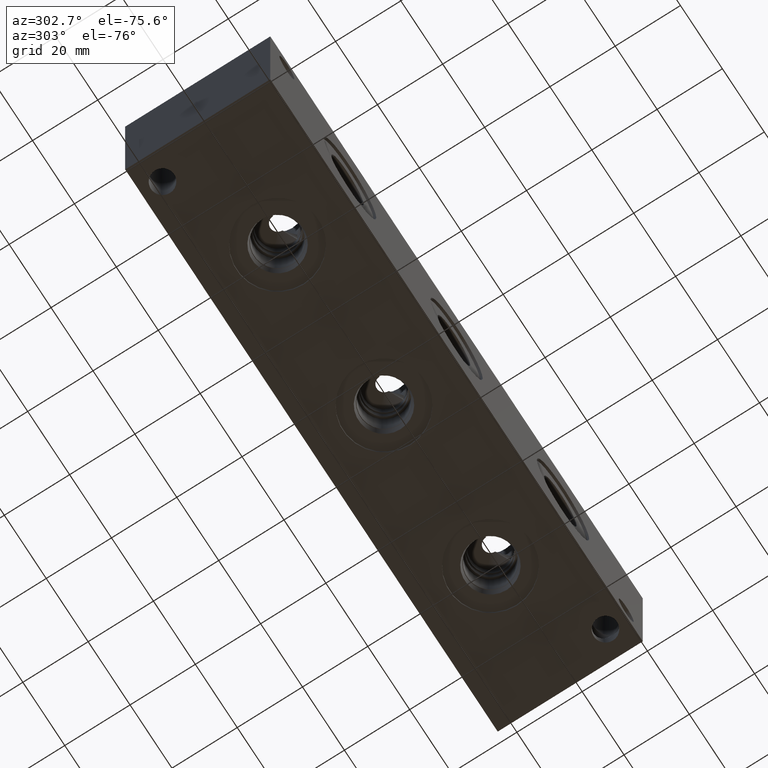
[diagram: clean part render]
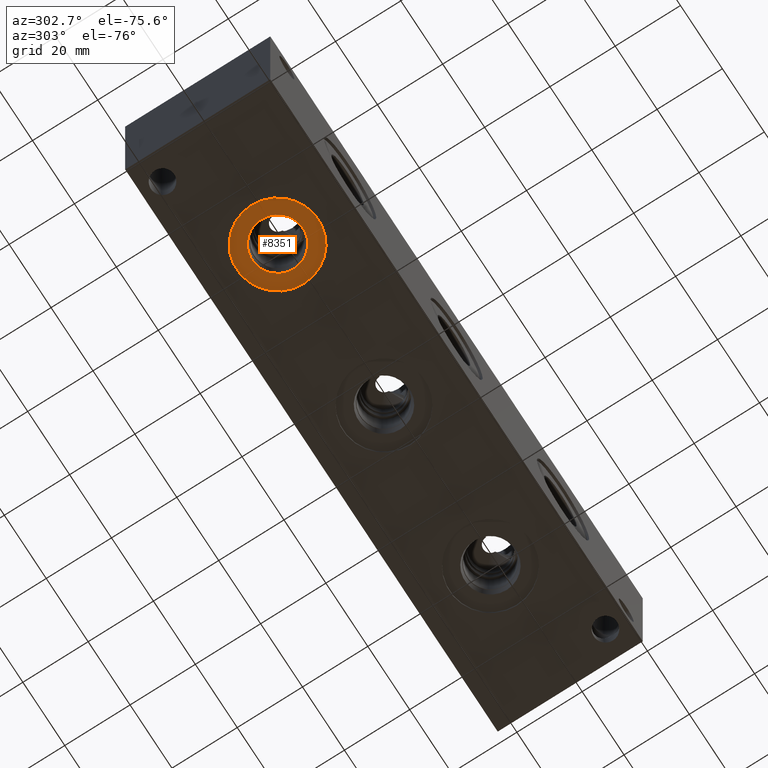
[diagram: same view with one face highlighted and labeled with its STEP entity id]
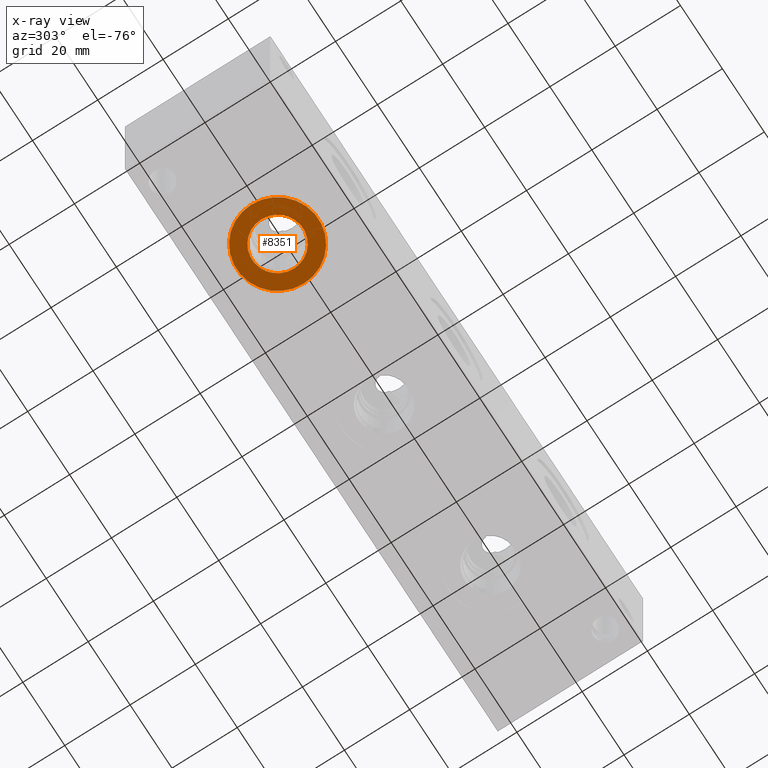
[diagram: x-ray of the same camera — body ghosted, the highlighted face saturated]
A machine part, auxiliary view. The second image highlights one B-rep face of the part: STEP entity #8351.
The next image is the same camera in x-ray: the body ghosted, the highlighted face saturated — about 0% of this face is hidden behind the body in this view.
In plain terms, the highlighted planar face has unit normal (0, 0, 1).
Its self-contained STEP definition (entity closure, byte-faithful):
#222=CIRCLE('',#8790,12.5095);
#223=CIRCLE('',#8791,12.5095);
#224=CIRCLE('',#8793,7.7978);
#225=CIRCLE('',#8794,7.7978);
#359=FACE_BOUND('',#1448,.T.);
#590=PLANE('',#8792);
#974=FACE_OUTER_BOUND('',#1447,.T.);
#1447=EDGE_LOOP('',(#7180,#7181));
#1448=EDGE_LOOP('',(#7182,#7183));
#3911=VERTEX_POINT('',#14431);
#3912=VERTEX_POINT('',#14433);
#3913=VERTEX_POINT('',#14437);
#3914=VERTEX_POINT('',#14438);
#5034=EDGE_CURVE('',#3911,#3912,#222,.T.);
#5035=EDGE_CURVE('',#3912,#3911,#223,.T.);
#5036=EDGE_CURVE('',#3913,#3914,#224,.T.);
#5037=EDGE_CURVE('',#3914,#3913,#225,.T.);
#7180=ORIENTED_EDGE('',*,*,#5035,.F.);
#7181=ORIENTED_EDGE('',*,*,#5034,.F.);
#7182=ORIENTED_EDGE('',*,*,#5036,.T.);
#7183=ORIENTED_EDGE('',*,*,#5037,.T.);
#8351=ADVANCED_FACE('',(#974,#359),#590,.F.);
#8790=AXIS2_PLACEMENT_3D('',#14434,#10339,#10340);
#8791=AXIS2_PLACEMENT_3D('',#14435,#10341,#10342);
#8792=AXIS2_PLACEMENT_3D('',#14436,#10343,#10344);
#8793=AXIS2_PLACEMENT_3D('',#14439,#10345,#10346);
#8794=AXIS2_PLACEMENT_3D('',#14440,#10347,#10348);
#10339=DIRECTION('center_axis',(0.,0.,1.));
#10340=DIRECTION('ref_axis',(1.,0.,0.));
#10341=DIRECTION('center_axis',(0.,0.,1.));
#10342=DIRECTION('ref_axis',(1.,0.,0.));
#10343=DIRECTION('center_axis',(0.,0.,1.));
#10344=DIRECTION('ref_axis',(1.,0.,0.));
#10345=DIRECTION('center_axis',(0.,0.,1.));
#10346=DIRECTION('ref_axis',(1.,0.,0.));
#10347=DIRECTION('center_axis',(0.,0.,1.));
#10348=DIRECTION('ref_axis',(1.,0.,0.));
#14431=CARTESIAN_POINT('',(25.5905,22.225,0.7874));
#14433=CARTESIAN_POINT('',(50.6095,22.225,0.7874));
#14434=CARTESIAN_POINT('Origin',(38.1,22.225,0.7874));
#14435=CARTESIAN_POINT('Origin',(38.1,22.225,0.7874));
#14436=CARTESIAN_POINT('Origin',(45.8978,22.225,0.7874));
#14437=CARTESIAN_POINT('',(45.8978,22.225,0.7874));
#14438=CARTESIAN_POINT('',(30.3022,22.225,0.787399999999999));
#14439=CARTESIAN_POINT('Origin',(38.1,22.225,0.7874));
#14440=CARTESIAN_POINT('Origin',(38.1,22.225,0.7874));